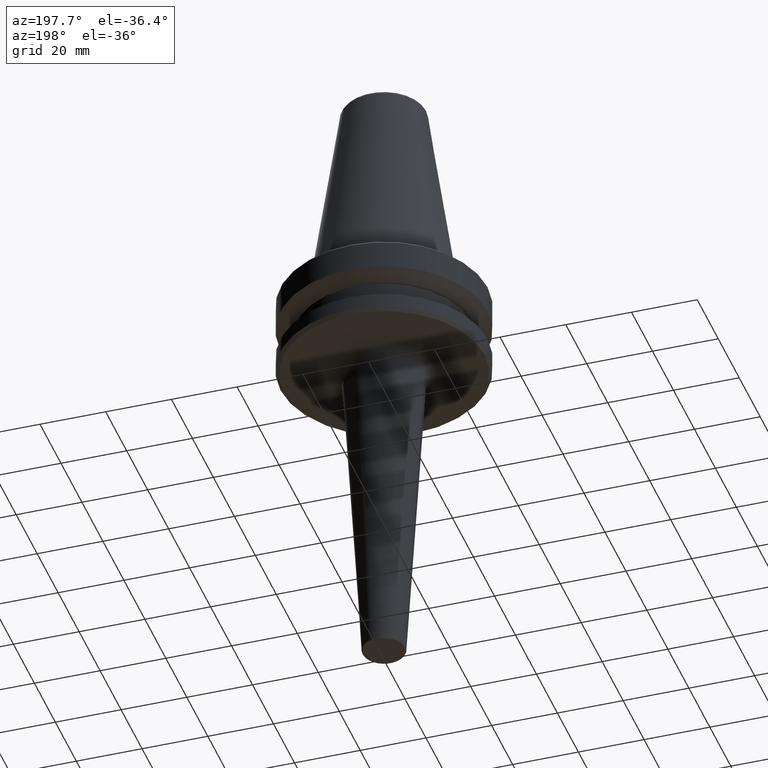
[diagram: clean part render]
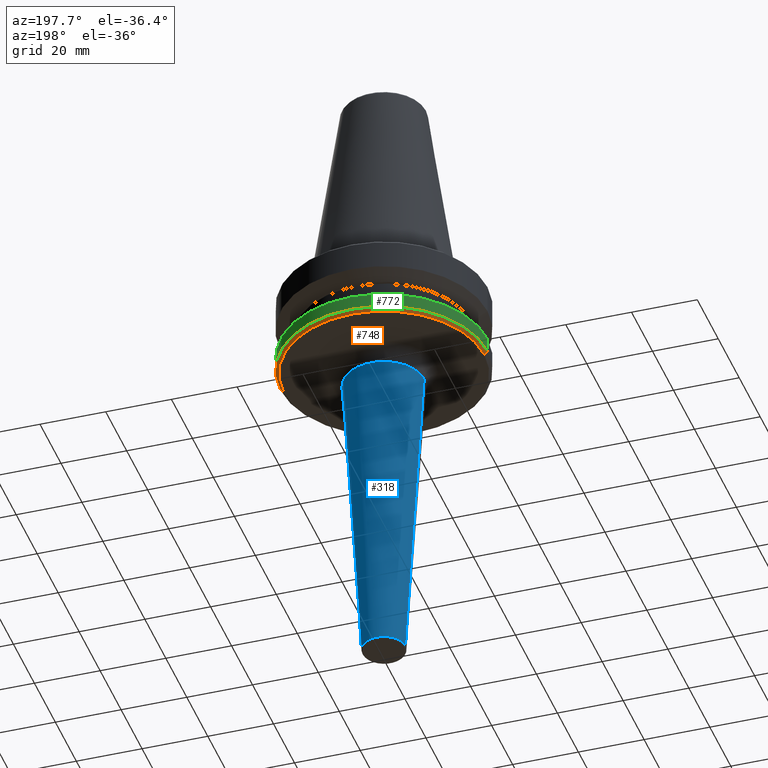
[diagram: same view with three faces highlighted in distinct colors, each labeled with its STEP entity id]
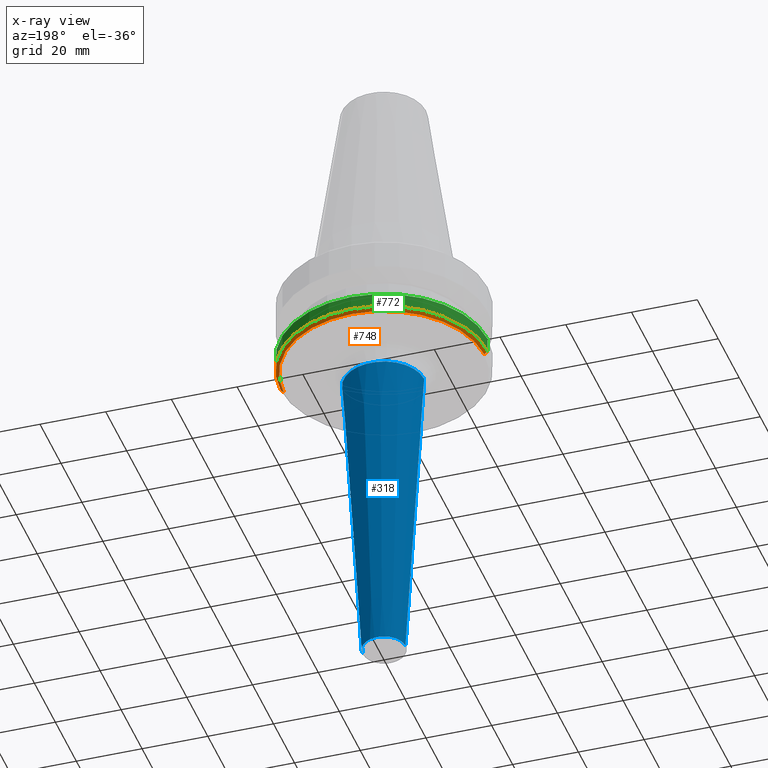
[diagram: x-ray of the same camera — body ghosted, the three highlighted faces saturated]
A machine part, auxiliary view with three faces highlighted in distinct colors.
The next image is the same camera in x-ray (body ghosted, the three faces saturated) — at least one of them is partly hidden behind the body in this view.
Their STEP definitions:

[orange] entity #748 — the highlighted conical surface has half-angle 45 deg.
#108 = ORIENTED_EDGE ( 'NONE', *, *, #184, .F. ) ;
#117 = CARTESIAN_POINT ( 'NONE',  ( 0.0000000000000000000, 0.0000000000000000000, -92.40000000000803500 ) ) ;
#158 = AXIS2_PLACEMENT_3D ( 'NONE', #117, #771, #830 ) ;
#159 = CARTESIAN_POINT ( 'NONE',  ( 31.50000000000008500, 0.0000000000000000000, -91.40000000000037500 ) ) ;
#163 = VECTOR ( 'NONE', #879, 1000.000000000000000 ) ;
#184 = EDGE_CURVE ( 'NONE', #590, #228, #765, .T. ) ;
#186 = DIRECTION ( 'NONE',  ( -0.0000000000000000000, -0.0000000000000000000, 1.000000000000000000 ) ) ;
#216 = DIRECTION ( 'NONE',  ( -0.0000000000000000000, -0.0000000000000000000, 1.000000000000000000 ) ) ;
#228 = VERTEX_POINT ( 'NONE', #739 ) ;
#230 = CARTESIAN_POINT ( 'NONE',  ( 0.0000000000000000000, 0.0000000000000000000, -91.40000000000037500 ) ) ;
#257 = ORIENTED_EDGE ( 'NONE', *, *, #636, .T. ) ;
#296 = VERTEX_POINT ( 'NONE', #733 ) ;
#313 = EDGE_LOOP ( 'NONE', ( #257, #757, #737, #108 ) ) ;
#385 = LINE ( 'NONE', #1022, #163 ) ;
#428 = CIRCLE ( 'NONE', #836, 31.50000000000008500 ) ;
#485 = CIRCLE ( 'NONE', #158, 30.49999999999241900 ) ;
#494 = DIRECTION ( 'NONE',  ( 0.7071067811865487900, 0.0000000000000000000, 0.7071067811865463500 ) ) ;
#551 = VECTOR ( 'NONE', #494, 1000.000000000000000 ) ;
#562 = AXIS2_PLACEMENT_3D ( 'NONE', #582, #186, #743 ) ;
#575 = CONICAL_SURFACE ( 'NONE', #562, 31.50000000000008500, 0.7853981633974500600 ) ;
#582 = CARTESIAN_POINT ( 'NONE',  ( 0.0000000000000000000, 0.0000000000000000000, -91.40000000000037500 ) ) ;
#590 = VERTEX_POINT ( 'NONE', #770 ) ;
#636 = EDGE_CURVE ( 'NONE', #590, #1019, #485, .T. ) ;
#729 = EDGE_CURVE ( 'NONE', #228, #296, #428, .T. ) ;
#733 = CARTESIAN_POINT ( 'NONE',  ( -31.50000000000008500, 3.857637417314172900E-015, -91.40000000000037500 ) ) ;
#737 = ORIENTED_EDGE ( 'NONE', *, *, #729, .F. ) ;
#739 = CARTESIAN_POINT ( 'NONE',  ( 31.50000000000008500, 0.0000000000000000000, -91.40000000000037500 ) ) ;
#743 = DIRECTION ( 'NONE',  ( 1.000000000000000000, 0.0000000000000000000, 0.0000000000000000000 ) ) ;
#748 = ADVANCED_FACE ( 'NONE', ( #865 ), #575, .T. ) ;
#756 = EDGE_CURVE ( 'NONE', #1019, #296, #385, .T. ) ;
#757 = ORIENTED_EDGE ( 'NONE', *, *, #756, .T. ) ;
#765 = LINE ( 'NONE', #159, #551 ) ;
#770 = CARTESIAN_POINT ( 'NONE',  ( 30.49999999999241900, 0.0000000000000000000, -92.40000000000803500 ) ) ;
#771 = DIRECTION ( 'NONE',  ( -0.0000000000000000000, -0.0000000000000000000, 1.000000000000000000 ) ) ;
#830 = DIRECTION ( 'NONE',  ( 1.000000000000000000, 0.0000000000000000000, 0.0000000000000000000 ) ) ;
#831 = CARTESIAN_POINT ( 'NONE',  ( -30.49999999999241900, 3.796405077356336000E-015, -92.40000000000803500 ) ) ;
#836 = AXIS2_PLACEMENT_3D ( 'NONE', #230, #216, #1033 ) ;
#865 = FACE_OUTER_BOUND ( 'NONE', #313, .T. ) ;
#879 = DIRECTION ( 'NONE',  ( -0.7071067811865487900, 8.659560562354948900E-017, 0.7071067811865463500 ) ) ;
#1019 = VERTEX_POINT ( 'NONE', #831 ) ;
#1022 = CARTESIAN_POINT ( 'NONE',  ( -31.50000000000008500, 3.857637417314172900E-015, -91.40000000000037500 ) ) ;
#1033 = DIRECTION ( 'NONE',  ( 1.000000000000000000, 0.0000000000000000000, 0.0000000000000000000 ) ) ;

[blue] entity #318 — the highlighted conical surface has half-angle 3.434 deg.
#32 = DIRECTION ( 'NONE',  ( -0.05989229072794676600, 7.334690213358271200E-018, 0.9982048454657787000 ) ) ;
#59 = VERTEX_POINT ( 'NONE', #1002 ) ;
#70 = DIRECTION ( 'NONE',  ( -0.0000000000000000000, -0.0000000000000000000, 1.000000000000000000 ) ) ;
#123 = CARTESIAN_POINT ( 'NONE',  ( 0.0000000000000000000, 0.0000000000000000000, -97.10053854636835500 ) ) ;
#194 = DIRECTION ( 'NONE',  ( 1.000000000000000000, 0.0000000000000000000, 0.0000000000000000000 ) ) ;
#198 = ORIENTED_EDGE ( 'NONE', *, *, #746, .F. ) ;
#204 = CARTESIAN_POINT ( 'NONE',  ( 12.21796768721838900, 0.0000000000000000000, -97.10053854636835500 ) ) ;
#286 = VERTEX_POINT ( 'NONE', #614 ) ;
#312 = EDGE_CURVE ( 'NONE', #286, #496, #802, .T. ) ;
#318 = ADVANCED_FACE ( 'NONE', ( #1015 ), #821, .T. ) ;
#334 = LINE ( 'NONE', #204, #960 ) ;
#409 = CIRCLE ( 'NONE', #813, 12.21796768721838900 ) ;
#438 = DIRECTION ( 'NONE',  ( 1.000000000000000000, 0.0000000000000000000, 0.0000000000000000000 ) ) ;
#439 = DIRECTION ( 'NONE',  ( -0.0000000000000000000, -0.0000000000000000000, 1.000000000000000000 ) ) ;
#443 = DIRECTION ( 'NONE',  ( 1.000000000000000000, 0.0000000000000000000, 0.0000000000000000000 ) ) ;
#445 = ORIENTED_EDGE ( 'NONE', *, *, #939, .F. ) ;
#446 = ORIENTED_EDGE ( 'NONE', *, *, #642, .T. ) ;
#455 = VECTOR ( 'NONE', #32, 1000.000000000000000 ) ;
#480 = AXIS2_PLACEMENT_3D ( 'NONE', #123, #538, #438 ) ;
#495 = EDGE_LOOP ( 'NONE', ( #936, #446, #198, #445 ) ) ;
#496 = VERTEX_POINT ( 'NONE', #995 ) ;
#525 = VERTEX_POINT ( 'NONE', #926 ) ;
#538 = DIRECTION ( 'NONE',  ( -0.0000000000000000000, -0.0000000000000000000, 1.000000000000000000 ) ) ;
#614 = CARTESIAN_POINT ( 'NONE',  ( 6.528203231278141900, 0.0000000000000000000, -191.9299461453723600 ) ) ;
#627 = CARTESIAN_POINT ( 'NONE',  ( 0.0000000000000000000, 0.0000000000000000000, -191.9299461453723600 ) ) ;
#642 = EDGE_CURVE ( 'NONE', #496, #59, #666, .T. ) ;
#656 = AXIS2_PLACEMENT_3D ( 'NONE', #627, #70, #194 ) ;
#666 = LINE ( 'NONE', #762, #455 ) ;
#746 = EDGE_CURVE ( 'NONE', #525, #59, #409, .T. ) ;
#762 = CARTESIAN_POINT ( 'NONE',  ( -12.21796768721838900, 1.496269502023778900E-015, -97.10053854636835500 ) ) ;
#802 = CIRCLE ( 'NONE', #656, 6.528203231278143700 ) ;
#813 = AXIS2_PLACEMENT_3D ( 'NONE', #895, #439, #443 ) ;
#821 = CONICAL_SURFACE ( 'NONE', #480, 12.21796768721838900, 0.05992815512120792900 ) ;
#895 = CARTESIAN_POINT ( 'NONE',  ( 0.0000000000000000000, 0.0000000000000000000, -97.10053854636835500 ) ) ;
#926 = CARTESIAN_POINT ( 'NONE',  ( 12.21796768721838900, 0.0000000000000000000, -97.10053854636835500 ) ) ;
#936 = ORIENTED_EDGE ( 'NONE', *, *, #312, .T. ) ;
#939 = EDGE_CURVE ( 'NONE', #286, #525, #334, .T. ) ;
#960 = VECTOR ( 'NONE', #981, 1000.000000000000000 ) ;
#981 = DIRECTION ( 'NONE',  ( 0.05989229072794676600, 0.0000000000000000000, 0.9982048454657787000 ) ) ;
#995 = CARTESIAN_POINT ( 'NONE',  ( -6.528203231278141900, 7.994743191368184000E-016, -191.9299461453723600 ) ) ;
#1002 = CARTESIAN_POINT ( 'NONE',  ( -12.21796768721839000, 1.801881594247039500E-015, -97.10053854636835500 ) ) ;
#1015 = FACE_OUTER_BOUND ( 'NONE', #495, .T. ) ;

[green] entity #772 — the highlighted cylindrical surface (partial cylindrical patch) has radius 31.5 mm, axis along (-0, -0, 1).
#3 = CARTESIAN_POINT ( 'NONE',  ( -31.50000000000008500, 3.857637417314172900E-015, 6.357346922996331500 ) ) ;
#10 = ORIENTED_EDGE ( 'NONE', *, *, #729, .T. ) ;
#26 = EDGE_CURVE ( 'NONE', #228, #637, #274, .T. ) ;
#56 = VECTOR ( 'NONE', #352, 1000.000000000000000 ) ;
#80 = DIRECTION ( 'NONE',  ( -0.0000000000000000000, -0.0000000000000000000, 1.000000000000000000 ) ) ;
#81 = AXIS2_PLACEMENT_3D ( 'NONE', #843, #80, #1041 ) ;
#169 = VECTOR ( 'NONE', #423, 1000.000000000000000 ) ;
#216 = DIRECTION ( 'NONE',  ( -0.0000000000000000000, -0.0000000000000000000, 1.000000000000000000 ) ) ;
#228 = VERTEX_POINT ( 'NONE', #739 ) ;
#230 = CARTESIAN_POINT ( 'NONE',  ( 0.0000000000000000000, 0.0000000000000000000, -91.40000000000037500 ) ) ;
#256 = ORIENTED_EDGE ( 'NONE', *, *, #842, .T. ) ;
#274 = LINE ( 'NONE', #444, #56 ) ;
#296 = VERTEX_POINT ( 'NONE', #733 ) ;
#352 = DIRECTION ( 'NONE',  ( -0.0000000000000000000, -0.0000000000000000000, 1.000000000000000000 ) ) ;
#376 = EDGE_CURVE ( 'NONE', #637, #507, #988, .T. ) ;
#391 = LINE ( 'NONE', #3, #169 ) ;
#414 = AXIS2_PLACEMENT_3D ( 'NONE', #871, #425, #595 ) ;
#423 = DIRECTION ( 'NONE',  ( -0.0000000000000000000, -0.0000000000000000000, 1.000000000000000000 ) ) ;
#425 = DIRECTION ( 'NONE',  ( -0.0000000000000000000, -0.0000000000000000000, 1.000000000000000000 ) ) ;
#428 = CIRCLE ( 'NONE', #836, 31.50000000000008500 ) ;
#444 = CARTESIAN_POINT ( 'NONE',  ( 31.50000000000008500, 0.0000000000000000000, 6.357346922996331500 ) ) ;
#507 = VERTEX_POINT ( 'NONE', #1007 ) ;
#544 = ORIENTED_EDGE ( 'NONE', *, *, #376, .F. ) ;
#548 = CYLINDRICAL_SURFACE ( 'NONE', #414, 31.50000000000008500 ) ;
#595 = DIRECTION ( 'NONE',  ( 1.000000000000000000, 0.0000000000000000000, 0.0000000000000000000 ) ) ;
#600 = CARTESIAN_POINT ( 'NONE',  ( 31.50000000000008500, 0.0000000000000000000, -87.00014200631733300 ) ) ;
#637 = VERTEX_POINT ( 'NONE', #600 ) ;
#638 = EDGE_LOOP ( 'NONE', ( #10, #256, #544, #897 ) ) ;
#729 = EDGE_CURVE ( 'NONE', #228, #296, #428, .T. ) ;
#733 = CARTESIAN_POINT ( 'NONE',  ( -31.50000000000008500, 3.857637417314172900E-015, -91.40000000000037500 ) ) ;
#739 = CARTESIAN_POINT ( 'NONE',  ( 31.50000000000008500, 0.0000000000000000000, -91.40000000000037500 ) ) ;
#772 = ADVANCED_FACE ( 'NONE', ( #977 ), #548, .T. ) ;
#836 = AXIS2_PLACEMENT_3D ( 'NONE', #230, #216, #1033 ) ;
#842 = EDGE_CURVE ( 'NONE', #296, #507, #391, .T. ) ;
#843 = CARTESIAN_POINT ( 'NONE',  ( 0.0000000000000000000, 0.0000000000000000000, -87.00014200631733300 ) ) ;
#871 = CARTESIAN_POINT ( 'NONE',  ( 0.0000000000000000000, 0.0000000000000000000, 6.357346922996331500 ) ) ;
#897 = ORIENTED_EDGE ( 'NONE', *, *, #26, .F. ) ;
#977 = FACE_OUTER_BOUND ( 'NONE', #638, .T. ) ;
#988 = CIRCLE ( 'NONE', #81, 31.50000000000008500 ) ;
#1007 = CARTESIAN_POINT ( 'NONE',  ( -31.50000000000008500, 3.857637417314172900E-015, -87.00014200631733300 ) ) ;
#1033 = DIRECTION ( 'NONE',  ( 1.000000000000000000, 0.0000000000000000000, 0.0000000000000000000 ) ) ;
#1041 = DIRECTION ( 'NONE',  ( 1.000000000000000000, 0.0000000000000000000, 0.0000000000000000000 ) ) ;